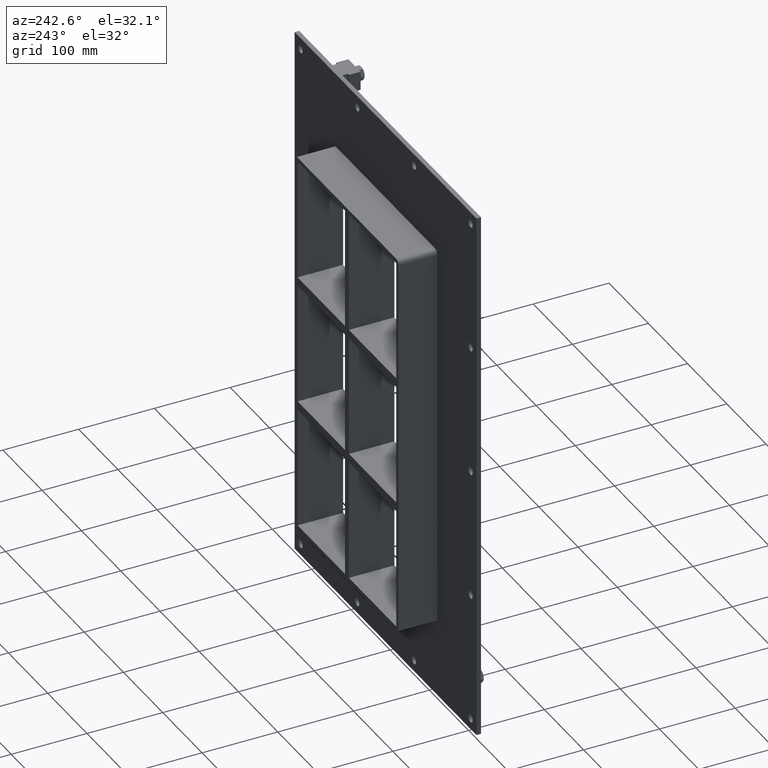
[diagram: clean part render]
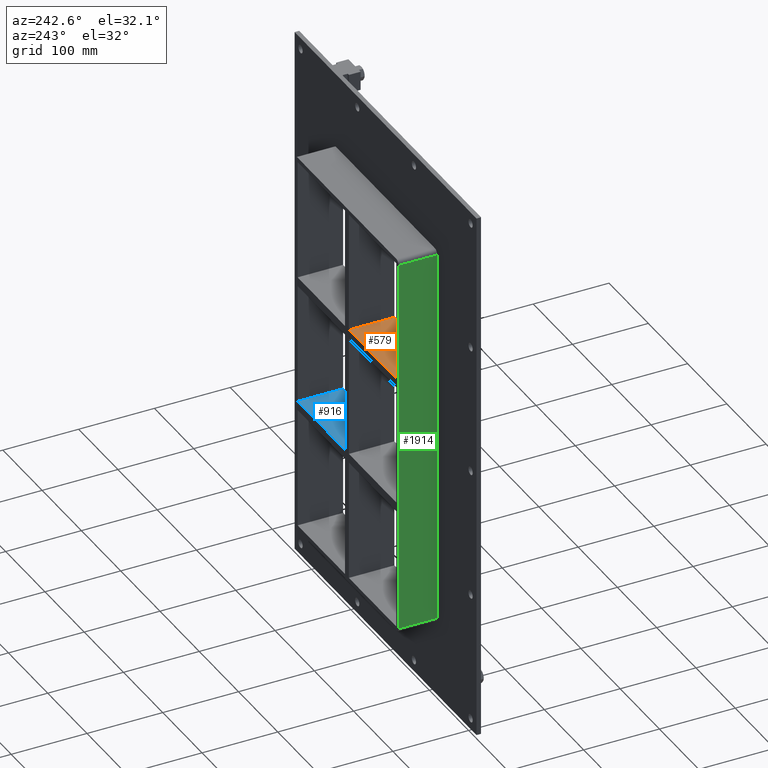
[diagram: same view with three faces highlighted in distinct colors, each labeled with its STEP entity id]
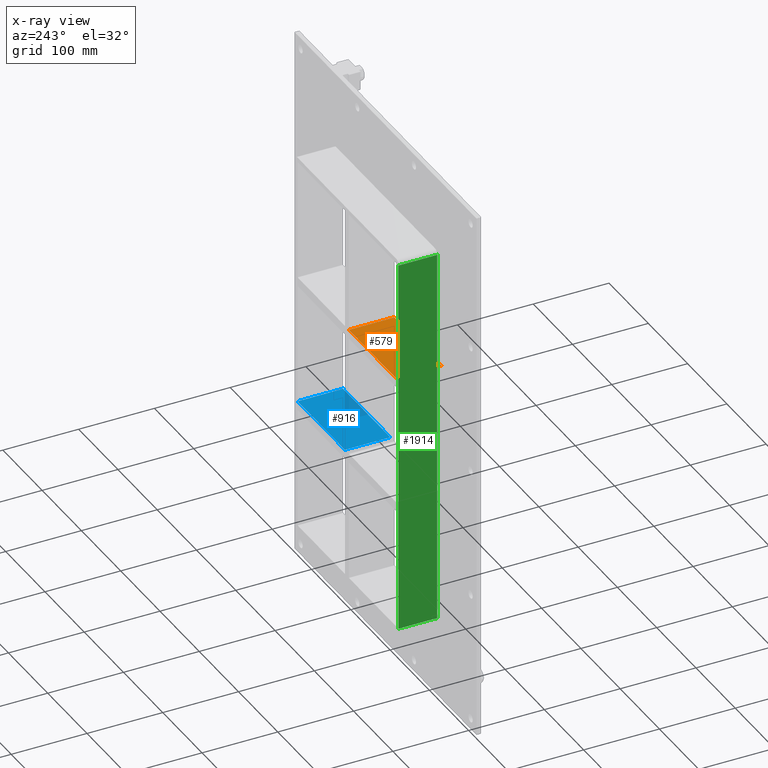
[diagram: x-ray of the same camera — body ghosted, the three highlighted faces saturated]
A machine part, auxiliary view with three faces highlighted in distinct colors.
The next image is the same camera in x-ray (body ghosted, the three faces saturated) — at least one of them is partly hidden behind the body in this view.
Their STEP definitions:

[orange] entity #579 — the highlighted planar face has unit normal (0, 0, 1).
#540=CARTESIAN_POINT('',(-125.49999999999753,-3.0,91.750000000000938));
#541=DIRECTION('',(0.0,0.0,1.0));
#542=DIRECTION('',(1.0,0.0,0.0));
#543=AXIS2_PLACEMENT_3D('',#540,#541,#542);
#544=PLANE('',#543);
#545=CARTESIAN_POINT('',(-4.999999999999172,57.0,91.750000000000966));
#546=VERTEX_POINT('',#545);
#547=CARTESIAN_POINT('',(-4.999999999999165,-3.0,91.750000000000938));
#548=VERTEX_POINT('',#547);
#549=CARTESIAN_POINT('',(-4.999999999999174,57.0,91.750000000000952));
#550=DIRECTION('',(0.0,-1.0,0.0));
#551=VECTOR('',#550,60.0);
#552=LINE('',#549,#551);
#553=EDGE_CURVE('',#546,#548,#552,.T.);
#554=ORIENTED_EDGE('',*,*,#553,.F.);
#555=CARTESIAN_POINT('',(-125.49999999999753,57.0,91.750000000000938));
#556=VERTEX_POINT('',#555);
#557=CARTESIAN_POINT('',(-125.49999999999753,57.0,91.750000000000938));
#558=DIRECTION('',(1.0,0.0,0.0));
#559=VECTOR('',#558,120.49999999999835);
#560=LINE('',#557,#559);
#561=EDGE_CURVE('',#556,#546,#560,.T.);
#562=ORIENTED_EDGE('',*,*,#561,.F.);
#563=CARTESIAN_POINT('',(-125.49999999999753,-3.0,91.750000000000938));
#564=VERTEX_POINT('',#563);
#565=CARTESIAN_POINT('',(-125.5,-3.0,91.750000000000952));
#566=DIRECTION('',(0.0,1.0,0.0));
#567=VECTOR('',#566,60.000000000000007);
#568=LINE('',#565,#567);
#569=EDGE_CURVE('',#564,#556,#568,.T.);
#570=ORIENTED_EDGE('',*,*,#569,.F.);
#571=CARTESIAN_POINT('',(-125.49999999999753,-3.0,91.750000000000938));
#572=DIRECTION('',(1.0,0.0,0.0));
#573=VECTOR('',#572,120.49999999999835);
#574=LINE('',#571,#573);
#575=EDGE_CURVE('',#564,#548,#574,.T.);
#576=ORIENTED_EDGE('',*,*,#575,.T.);
#577=EDGE_LOOP('',(#554,#562,#570,#576));
#578=FACE_OUTER_BOUND('',#577,.T.);
#579=ADVANCED_FACE('',(#578),#544,.T.);

[blue] entity #916 — the highlighted planar face has unit normal (0, 0, 1).
#657=CARTESIAN_POINT('',(125.49999999999919,57.0,-79.749999999999091));
#658=VERTEX_POINT('',#657);
#665=CARTESIAN_POINT('',(125.49999999999919,-3.0,-79.749999999999091));
#666=VERTEX_POINT('',#665);
#667=CARTESIAN_POINT('',(125.5,57.000000000000007,-79.749999999999091));
#668=DIRECTION('',(0.0,-1.0,0.0));
#669=VECTOR('',#668,60.000000000000007);
#670=LINE('',#667,#669);
#671=EDGE_CURVE('',#658,#666,#670,.T.);
#886=CARTESIAN_POINT('',(-125.49999999999753,-3.0,-79.749999999999091));
#887=DIRECTION('',(0.0,0.0,1.0));
#888=DIRECTION('',(1.0,0.0,0.0));
#889=AXIS2_PLACEMENT_3D('',#886,#887,#888);
#890=PLANE('',#889);
#891=CARTESIAN_POINT('',(5.0,-3.0,-79.749999999999091));
#892=VERTEX_POINT('',#891);
#893=CARTESIAN_POINT('',(5.0,57.0,-79.749999999999091));
#894=VERTEX_POINT('',#893);
#895=CARTESIAN_POINT('',(5.0,-3.0,-79.749999999999091));
#896=DIRECTION('',(0.0,1.0,0.0));
#897=VECTOR('',#896,60.0);
#898=LINE('',#895,#897);
#899=EDGE_CURVE('',#892,#894,#898,.T.);
#900=ORIENTED_EDGE('',*,*,#899,.F.);
#901=CARTESIAN_POINT('',(5.0,-3.0,-79.749999999999091));
#902=DIRECTION('',(1.0,0.0,0.0));
#903=VECTOR('',#902,120.49999999999918);
#904=LINE('',#901,#903);
#905=EDGE_CURVE('',#892,#666,#904,.T.);
#906=ORIENTED_EDGE('',*,*,#905,.T.);
#907=ORIENTED_EDGE('',*,*,#671,.F.);
#908=CARTESIAN_POINT('',(5.0,57.0,-79.749999999999091));
#909=DIRECTION('',(1.0,0.0,0.0));
#910=VECTOR('',#909,120.49999999999918);
#911=LINE('',#908,#910);
#912=EDGE_CURVE('',#894,#658,#911,.T.);
#913=ORIENTED_EDGE('',*,*,#912,.F.);
#914=EDGE_LOOP('',(#900,#906,#907,#913));
#915=FACE_OUTER_BOUND('',#914,.T.);
#916=ADVANCED_FACE('',(#915),#890,.T.);

[green] entity #1914 — the highlighted planar face has unit normal (-1, 0, 0).
#1006=CARTESIAN_POINT('',(-131.5,57.0,-251.25000000000003));
#1007=VERTEX_POINT('',#1006);
#1017=CARTESIAN_POINT('',(-131.5,57.0,251.24999999999997));
#1018=VERTEX_POINT('',#1017);
#1019=CARTESIAN_POINT('',(-131.5,57.0,-251.25000000000006));
#1020=DIRECTION('',(0.0,0.0,1.0));
#1021=VECTOR('',#1020,502.5);
#1022=LINE('',#1019,#1021);
#1023=EDGE_CURVE('',#1007,#1018,#1022,.T.);
#1380=CARTESIAN_POINT('',(-131.5,6.000000000000001,251.24999999999997));
#1381=VERTEX_POINT('',#1380);
#1391=CARTESIAN_POINT('',(-131.5,6.000000000000001,-251.25000000000003));
#1392=VERTEX_POINT('',#1391);
#1393=CARTESIAN_POINT('',(-131.5,6.000000000000001,-251.25000000000006));
#1394=DIRECTION('',(0.0,0.0,1.0));
#1395=VECTOR('',#1394,502.5);
#1396=LINE('',#1393,#1395);
#1397=EDGE_CURVE('',#1392,#1381,#1396,.T.);
#1838=CARTESIAN_POINT('',(-131.5,6.000000000000001,-251.25000000000003));
#1839=DIRECTION('',(0.0,1.0,0.0));
#1840=VECTOR('',#1839,51.0);
#1841=LINE('',#1838,#1840);
#1842=EDGE_CURVE('',#1392,#1007,#1841,.T.);
#1898=CARTESIAN_POINT('',(-131.5,0.0,-257.25000000000006));
#1899=DIRECTION('',(-1.0,0.0,0.0));
#1900=DIRECTION('',(0.0,0.0,1.0));
#1901=AXIS2_PLACEMENT_3D('',#1898,#1899,#1900);
#1902=PLANE('',#1901);
#1903=ORIENTED_EDGE('',*,*,#1397,.T.);
#1904=CARTESIAN_POINT('',(-131.5,57.0,251.24999999999997));
#1905=DIRECTION('',(0.0,-1.0,0.0));
#1906=VECTOR('',#1905,51.0);
#1907=LINE('',#1904,#1906);
#1908=EDGE_CURVE('',#1018,#1381,#1907,.T.);
#1909=ORIENTED_EDGE('',*,*,#1908,.F.);
#1910=ORIENTED_EDGE('',*,*,#1023,.F.);
#1911=ORIENTED_EDGE('',*,*,#1842,.F.);
#1912=EDGE_LOOP('',(#1903,#1909,#1910,#1911));
#1913=FACE_OUTER_BOUND('',#1912,.T.);
#1914=ADVANCED_FACE('',(#1913),#1902,.T.);